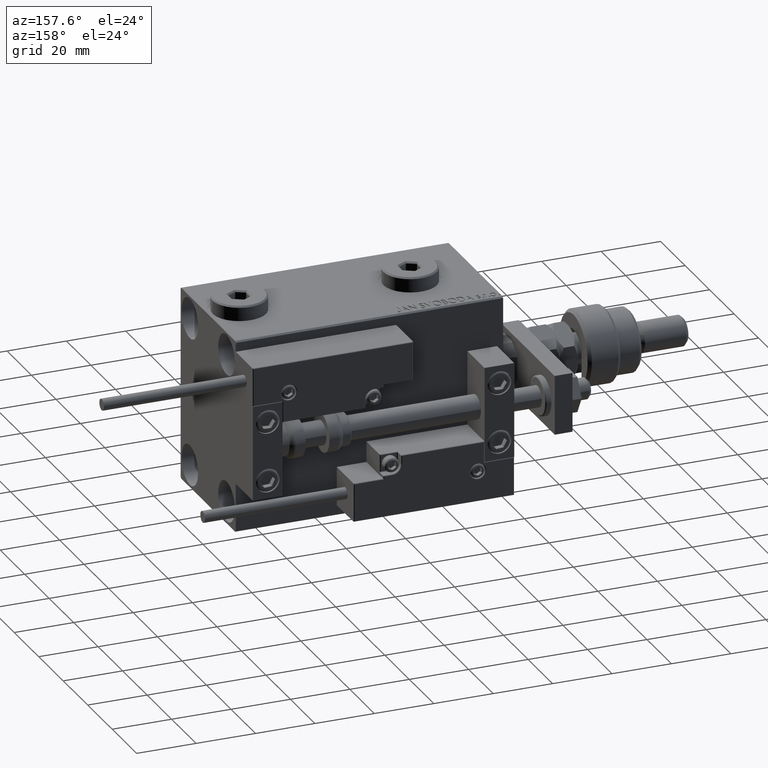
[diagram: clean part render]
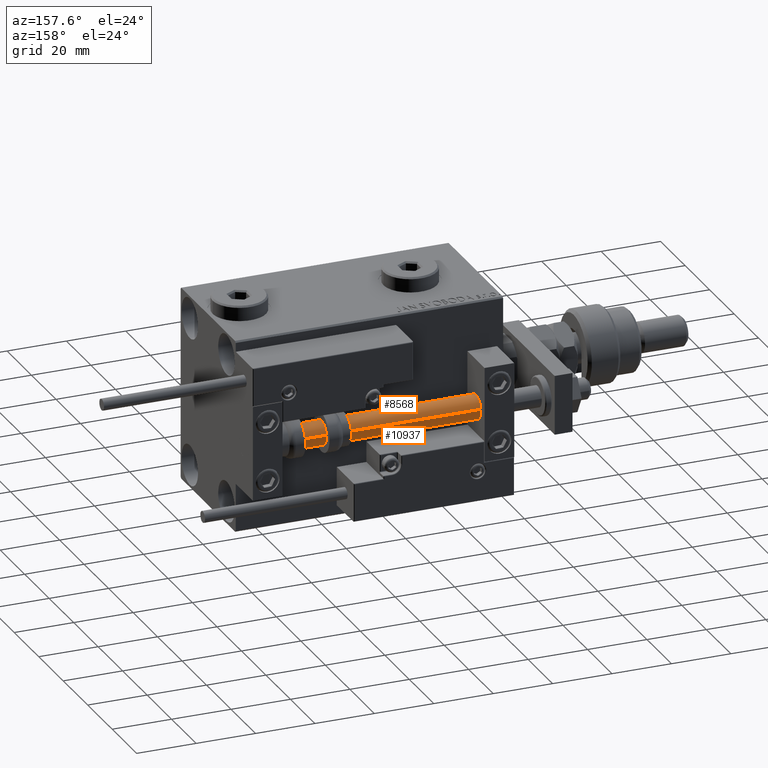
[diagram: same view with one multi-face feature highlighted, each face labeled with its STEP entity id]
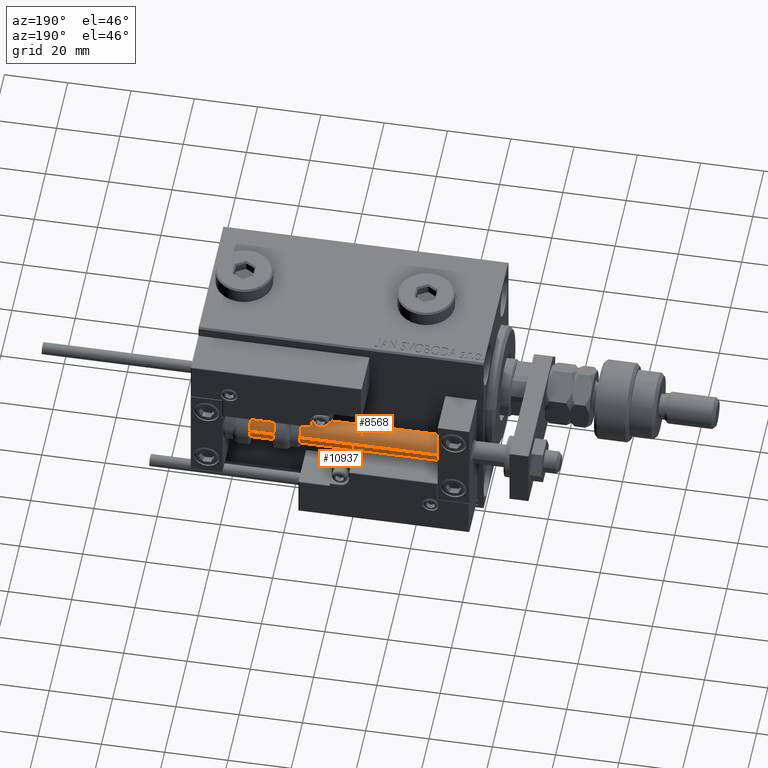
[diagram: same view with one multi-face feature highlighted, each face labeled with its STEP entity id]
A machine part, auxiliary view. The highlighted faces form ONE feature: a constant-radius fillet chain: 2 tangent blend faces with common blend radius 4 mm. The faces share edges in the B-rep.
A second angle (auxiliary view) of the same feature is appended — it is thin or edge-on in the first view.
Their STEP definitions:
[1] entity #10937 (Cylinder):
#2218 = DIRECTION ( 'NONE',  ( -0.000000000000000000, -0.000000000000000000, 1.000000000000000000 ) ) ;
#4111 = CARTESIAN_POINT ( 'NONE',  ( 4.000000000000000000, 4.898587196589411843E-16, 90.00000000000000000 ) ) ;
#5118 = DIRECTION ( 'NONE',  ( -0.000000000000000000, -0.000000000000000000, -1.000000000000000000 ) ) ;
#5382 = CARTESIAN_POINT ( 'NONE',  ( -4.000000000000000000, 0.000000000000000000, 90.00000000000000000 ) ) ;
#5704 = DIRECTION ( 'NONE',  ( -0.000000000000000000, -0.000000000000000000, -1.000000000000000000 ) ) ;
#5786 = CARTESIAN_POINT ( 'NONE',  ( 0.000000000000000000, 0.000000000000000000, 2.000000000000029310 ) ) ;
#7812 = ORIENTED_EDGE ( 'NONE', *, *, #43283, .F. ) ;
#8959 = VECTOR ( 'NONE', #37946, 1000.000000000000000 ) ;
#9251 = LINE ( 'NONE', #5382, #33629 ) ;
#9791 = ORIENTED_EDGE ( 'NONE', *, *, #19883, .T. ) ;
#10450 = DIRECTION ( 'NONE',  ( 1.000000000000000000, 0.000000000000000000, 0.000000000000000000 ) ) ;
#10937 = ADVANCED_FACE ( 'NONE', ( #47224 ), #18355, .T. ) ;
#11116 = VERTEX_POINT ( 'NONE', #27980 ) ;
#11495 = CARTESIAN_POINT ( 'NONE',  ( -4.000000000000000000, 0.000000000000000000, 90.00000000000000000 ) ) ;
#15967 = AXIS2_PLACEMENT_3D ( 'NONE', #26604, #5704, #43380 ) ;
#16380 = AXIS2_PLACEMENT_3D ( 'NONE', #33669, #17163, #16895 ) ;
#16895 = DIRECTION ( 'NONE',  ( 1.000000000000000000, 0.000000000000000000, 0.000000000000000000 ) ) ;
#17163 = DIRECTION ( 'NONE',  ( 0.000000000000000000, 0.000000000000000000, 1.000000000000000000 ) ) ;
#18355 = CYLINDRICAL_SURFACE ( 'NONE', #15967, 4.000000000000000000 ) ;
#19879 = CIRCLE ( 'NONE', #16380, 4.000000000000000000 ) ;
#19883 = EDGE_CURVE ( 'NONE', #11116, #22121, #29404, .T. ) ;
#22121 = VERTEX_POINT ( 'NONE', #22517 ) ;
#22517 = CARTESIAN_POINT ( 'NONE',  ( 4.000000000000000000, 4.898587196589411843E-16, 2.000000000000029310 ) ) ;
#25290 = VERTEX_POINT ( 'NONE', #11495 ) ;
#26604 = CARTESIAN_POINT ( 'NONE',  ( 0.000000000000000000, 0.000000000000000000, 90.00000000000000000 ) ) ;
#27255 = CARTESIAN_POINT ( 'NONE',  ( 4.000000000000000000, 4.898587196589411843E-16, 90.00000000000000000 ) ) ;
#27701 = EDGE_CURVE ( 'NONE', #52638, #22121, #49502, .T. ) ;
#27980 = CARTESIAN_POINT ( 'NONE',  ( -4.000000000000000000, 0.000000000000000000, 2.000000000000029310 ) ) ;
#29404 = CIRCLE ( 'NONE', #46906, 4.000000000000000000 ) ;
#32183 = EDGE_CURVE ( 'NONE', #25290, #11116, #9251, .T. ) ;
#33629 = VECTOR ( 'NONE', #5118, 1000.000000000000000 ) ;
#33669 = CARTESIAN_POINT ( 'NONE',  ( 0.000000000000000000, 0.000000000000000000, 90.00000000000000000 ) ) ;
#37946 = DIRECTION ( 'NONE',  ( -0.000000000000000000, -0.000000000000000000, -1.000000000000000000 ) ) ;
#43283 = EDGE_CURVE ( 'NONE', #25290, #52638, #19879, .T. ) ;
#43380 = DIRECTION ( 'NONE',  ( -1.000000000000000000, 0.000000000000000000, 0.000000000000000000 ) ) ;
#45002 = ORIENTED_EDGE ( 'NONE', *, *, #32183, .T. ) ;
#46906 = AXIS2_PLACEMENT_3D ( 'NONE', #5786, #2218, #10450 ) ;
#47224 = FACE_OUTER_BOUND ( 'NONE', #48767, .T. ) ;
#48767 = EDGE_LOOP ( 'NONE', ( #51065, #7812, #45002, #9791 ) ) ;
#49502 = LINE ( 'NONE', #4111, #8959 ) ;
#51065 = ORIENTED_EDGE ( 'NONE', *, *, #27701, .F. ) ;
#52638 = VERTEX_POINT ( 'NONE', #27255 ) ;
[2] entity #8568 (Cylinder):
#2171 = EDGE_LOOP ( 'NONE', ( #31239, #49000, #13640, #24362 ) ) ;
#2527 = FACE_OUTER_BOUND ( 'NONE', #2171, .T. ) ;
#4111 = CARTESIAN_POINT ( 'NONE',  ( 4.000000000000000000, 4.898587196589411843E-16, 90.00000000000000000 ) ) ;
#5118 = DIRECTION ( 'NONE',  ( -0.000000000000000000, -0.000000000000000000, -1.000000000000000000 ) ) ;
#5382 = CARTESIAN_POINT ( 'NONE',  ( -4.000000000000000000, 0.000000000000000000, 90.00000000000000000 ) ) ;
#8568 = ADVANCED_FACE ( 'NONE', ( #2527 ), #19298, .T. ) ;
#8959 = VECTOR ( 'NONE', #37946, 1000.000000000000000 ) ;
#9251 = LINE ( 'NONE', #5382, #33629 ) ;
#9682 = DIRECTION ( 'NONE',  ( -1.000000000000000000, 0.000000000000000000, 0.000000000000000000 ) ) ;
#9824 = AXIS2_PLACEMENT_3D ( 'NONE', #48288, #19422, #40342 ) ;
#11116 = VERTEX_POINT ( 'NONE', #27980 ) ;
#11494 = DIRECTION ( 'NONE',  ( -0.000000000000000000, -0.000000000000000000, 1.000000000000000000 ) ) ;
#11495 = CARTESIAN_POINT ( 'NONE',  ( -4.000000000000000000, 0.000000000000000000, 90.00000000000000000 ) ) ;
#12168 = EDGE_CURVE ( 'NONE', #52638, #25290, #25652, .T. ) ;
#12328 = AXIS2_PLACEMENT_3D ( 'NONE', #36103, #52843, #9682 ) ;
#13640 = ORIENTED_EDGE ( 'NONE', *, *, #45223, .T. ) ;
#19081 = CIRCLE ( 'NONE', #49822, 4.000000000000000000 ) ;
#19298 = CYLINDRICAL_SURFACE ( 'NONE', #12328, 4.000000000000000000 ) ;
#19422 = DIRECTION ( 'NONE',  ( 0.000000000000000000, 0.000000000000000000, 1.000000000000000000 ) ) ;
#22121 = VERTEX_POINT ( 'NONE', #22517 ) ;
#22517 = CARTESIAN_POINT ( 'NONE',  ( 4.000000000000000000, 4.898587196589411843E-16, 2.000000000000029310 ) ) ;
#24362 = ORIENTED_EDGE ( 'NONE', *, *, #32183, .F. ) ;
#25290 = VERTEX_POINT ( 'NONE', #11495 ) ;
#25652 = CIRCLE ( 'NONE', #9824, 4.000000000000000000 ) ;
#27255 = CARTESIAN_POINT ( 'NONE',  ( 4.000000000000000000, 4.898587196589411843E-16, 90.00000000000000000 ) ) ;
#27701 = EDGE_CURVE ( 'NONE', #52638, #22121, #49502, .T. ) ;
#27980 = CARTESIAN_POINT ( 'NONE',  ( -4.000000000000000000, 0.000000000000000000, 2.000000000000029310 ) ) ;
#31239 = ORIENTED_EDGE ( 'NONE', *, *, #12168, .F. ) ;
#32183 = EDGE_CURVE ( 'NONE', #25290, #11116, #9251, .T. ) ;
#33629 = VECTOR ( 'NONE', #5118, 1000.000000000000000 ) ;
#36103 = CARTESIAN_POINT ( 'NONE',  ( 0.000000000000000000, 0.000000000000000000, 90.00000000000000000 ) ) ;
#37946 = DIRECTION ( 'NONE',  ( -0.000000000000000000, -0.000000000000000000, -1.000000000000000000 ) ) ;
#40342 = DIRECTION ( 'NONE',  ( 1.000000000000000000, 0.000000000000000000, 0.000000000000000000 ) ) ;
#44769 = CARTESIAN_POINT ( 'NONE',  ( 0.000000000000000000, 0.000000000000000000, 2.000000000000029310 ) ) ;
#45223 = EDGE_CURVE ( 'NONE', #22121, #11116, #19081, .T. ) ;
#48288 = CARTESIAN_POINT ( 'NONE',  ( 0.000000000000000000, 0.000000000000000000, 90.00000000000000000 ) ) ;
#48332 = DIRECTION ( 'NONE',  ( 1.000000000000000000, 0.000000000000000000, 0.000000000000000000 ) ) ;
#49000 = ORIENTED_EDGE ( 'NONE', *, *, #27701, .T. ) ;
#49502 = LINE ( 'NONE', #4111, #8959 ) ;
#49822 = AXIS2_PLACEMENT_3D ( 'NONE', #44769, #11494, #48332 ) ;
#52638 = VERTEX_POINT ( 'NONE', #27255 ) ;
#52843 = DIRECTION ( 'NONE',  ( -0.000000000000000000, -0.000000000000000000, -1.000000000000000000 ) ) ;